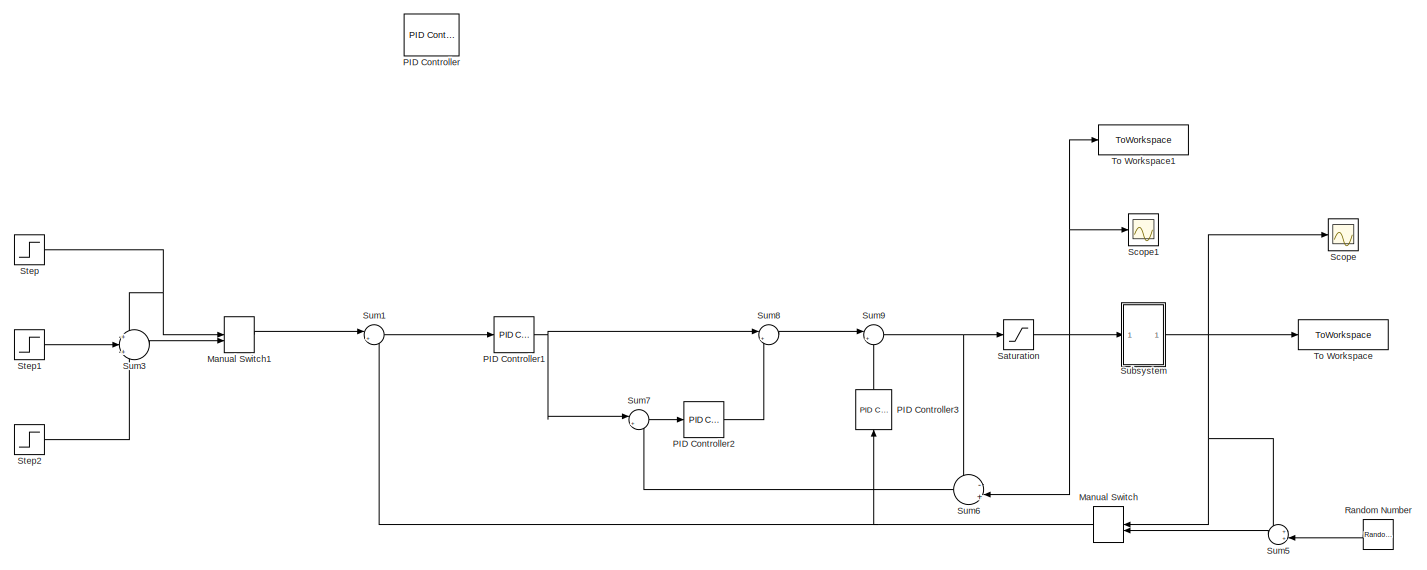
[diagram: root canvas - part 1/2, full width, top band]
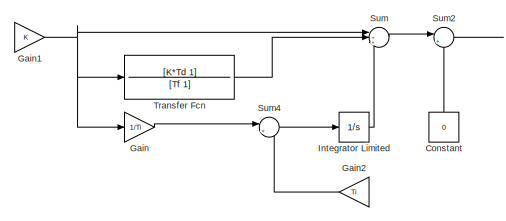
[diagram: root canvas - part 2/2, bottom center region]
MODEL slx_afa5c2158706
KIND model
CONFIG AbsTol = auto
CONFIG EnableMultiTasking = off
CONFIG FixedStep = 0.1
CONFIG MaxStep = auto
CONFIG MinStep = auto
CONFIG RelTol = 1e-3
CONFIG SampleTimeConstraint = Unconstrained
CONFIG Solver = ode4
CONFIG SolverName = ode4
CONFIG StartTime = 0.0
CONFIG StopTime = 100000.0
BLOCK [Constant] Constant
  Commented = on
  Value = 0
BLOCK [Gain] Gain
  Commented = on
  Gain = 1/Ti
BLOCK [Gain] Gain1
  Commented = on
  Gain = K
BLOCK [Gain] Gain2
  Commented = on
  Gain = Ti
BLOCK [Integrator] Integrator Limited
  Commented = on
  LimitOutput = on
  LowerSaturationLimit = 0
  Ports = [1, 1]
  UpperSaturationLimit = 10*Fa
BLOCK [ManualSwitch] Manual Switch
  CurrentSetting = 0
BLOCK [ManualSwitch] Manual Switch1
  CurrentSetting = 0
BLOCK [Reference] PID Controller  REF=simulink/Continuous/PID Controller
  Commented = on
  Ports = [1, 1]
  SourceBlock = simulink/Continuous/PID Controller
  SourceProductBaseCode = SL
  SourceType = PID 1dof
BLOCK [Reference] PID Controller1  REF=simulink/Continuous/PID Controller
  Ports = [1, 1]
  SourceBlock = simulink/Continuous/PID Controller
  SourceProductBaseCode = SL
  SourceType = PID 1dof
BLOCK [Reference] PID Controller2  REF=simulink/Continuous/PID Controller
  Ports = [1, 1]
  SourceBlock = simulink/Continuous/PID Controller
  SourceProductBaseCode = SL
  SourceType = PID 1dof
BLOCK [Reference] PID Controller3  REF=simulink/Continuous/PID Controller
  Ports = [1, 1]
  SourceBlock = simulink/Continuous/PID Controller
  SourceProductBaseCode = SL
  SourceType = PID 1dof
BLOCK [RandomNumber] Random Number
  SampleTime = 0.1
  Variance = 0.01225
BLOCK [Saturate] Saturation
  LowerLimit = 0
  UpperLimit = 10*Fa
BLOCK [Scope] Scope
  Floating = off
  NumInputPorts = 1
  Ports = [1]
  ScopeSpecificationString = Simulink.scopes.TimeScopeBlockCfg('CurrentConfiguration', extmgr.ConfigurationSet(extmgr.Configuration('Core','General UI',true),extmgr.Configuration('Core','Source UI',true),extmgr.Configuration('Sources','WiredSimulink',true),extmgr.Configuration('Visuals','Time Domain',true,'SerializedDisplays',{struct('MinYLimReal','6.02325','MaxYLimReal','7.77936','YLabelReal','','MinYLimMag','6.02325','MaxYL...<+1404ch>
BLOCK [Scope] Scope1
  Floating = off
  NumInputPorts = 1
  Ports = [1]
  ScopeSpecificationString = Simulink.scopes.TimeScopeBlockCfg('CurrentConfiguration', extmgr.ConfigurationSet(extmgr.Configuration('Core','General UI',true),extmgr.Configuration('Core','Source UI',true),extmgr.Configuration('Sources','WiredSimulink',true,'DataLoggingVariableName','ScopeData1'),extmgr.Configuration('Visuals','Time Domain',true,'SerializedDisplays',{struct('MinYLimReal','-0.02083','MaxYLimReal','0.1875','YLabe...<+1365ch>
BLOCK [Step] Step
  After = 7
  SampleTime = 0
  Time = 0.1
BLOCK [Step] Step1
  After = -0.8
  SampleTime = 0
  Time = 10000
BLOCK [Step] Step2
  After = 1.3
  SampleTime = 0
  Time = 50000
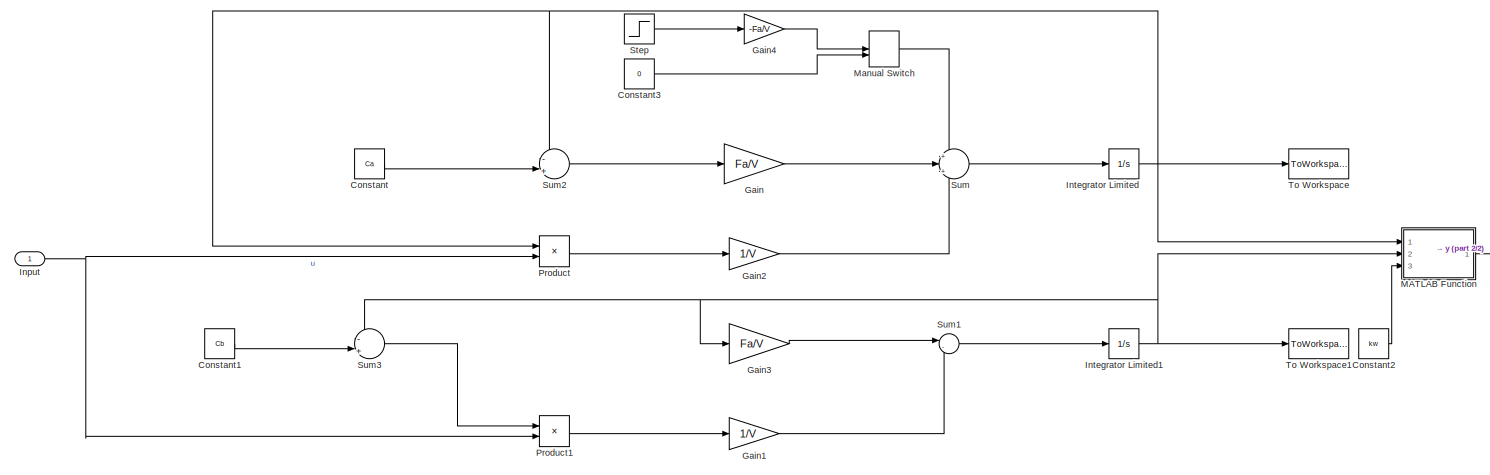
[diagram: Subsystem - part 1/2, most of the canvas]
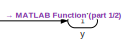
[diagram: Subsystem - part 2/2, middle right region]
BLOCK [SubSystem] Subsystem
  Ports = [1, 1]
  RequestExecContextInheritance = off
BLOCK [Constant] Subsystem/Constant
  Value = Ca
BLOCK [Constant] Subsystem/Constant1
  Value = Cb
BLOCK [Constant] Subsystem/Constant2
  Value = kw
BLOCK [Constant] Subsystem/Constant3
  Value = 0
BLOCK [Gain] Subsystem/Gain
  Gain = Fa/V
BLOCK [Gain] Subsystem/Gain1
  Gain = 1/V
BLOCK [Gain] Subsystem/Gain2
  Gain = 1/V
BLOCK [Gain] Subsystem/Gain3
  Gain = Fa/V
BLOCK [Gain] Subsystem/Gain4
  Gain = -Fa/V
BLOCK [Inport] Subsystem/Input
  IconDisplay = Signal name
BLOCK [Integrator] Subsystem/Integrator Limited
  LimitOutput = on
  LowerSaturationLimit = 0
  Ports = [1, 1]
  UpperSaturationLimit = Ca
BLOCK [Integrator] Subsystem/Integrator Limited1
  LimitOutput = on
  LowerSaturationLimit = 0
  Ports = [1, 1]
  UpperSaturationLimit = Cb
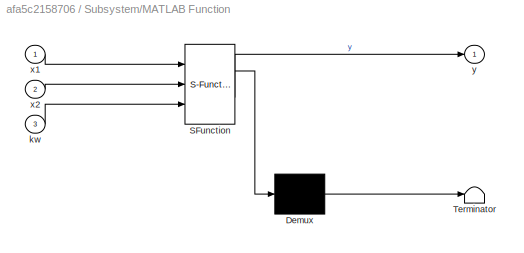
BLOCK [SubSystem] Subsystem/MATLAB Function
  ErrorFcn = Stateflow.Translate.translate
  PermitHierarchicalResolution = ExplicitOnly
  Ports = [3, 1]
  RequestExecContextInheritance = off
  SFBlockType = MATLAB Function
  TreatAsAtomicUnit = on
BLOCK [Demux] Subsystem/MATLAB Function/ Demux 
  Outputs = 1
  Ports = [1, 1]
BLOCK [S-Function] Subsystem/MATLAB Function/ SFunction 
  EnableBusSupport = on
  FunctionName = sf_sfun
  PortCounts = [3 2]
  Ports = [3, 2]
  SFcnIsStateOwnerBlock = off
  SFunctionDeploymentMode = off
  Tag = Stateflow S-Function konvencionalni_PID 2
BLOCK [Terminator] Subsystem/MATLAB Function/ Terminator 
BLOCK [Inport] Subsystem/MATLAB Function/kw
  Port = 3
BLOCK [Inport] Subsystem/MATLAB Function/x1
BLOCK [Inport] Subsystem/MATLAB Function/x2
  Port = 2
BLOCK [Outport] Subsystem/MATLAB Function/y
BLOCK [ManualSwitch] Subsystem/Manual Switch
BLOCK [Product] Subsystem/Product
  Ports = [2, 1]
BLOCK [Product] Subsystem/Product1
  Ports = [2, 1]
BLOCK [Step] Subsystem/Step
  After = Ca
  SampleTime = 0
  Time = 70000
BLOCK [Sum] Subsystem/Sum
  Inputs = +|+|-
  Ports = [3, 1]
BLOCK [Sum] Subsystem/Sum1
  Inputs = |-+
  Ports = [2, 1]
BLOCK [Sum] Subsystem/Sum2
  Inputs = -|+||
  Ports = [2, 1]
BLOCK [Sum] Subsystem/Sum3
  Inputs = -|+||
  Ports = [2, 1]
BLOCK [ToWorkspace] Subsystem/To Workspace
  FixptAsFi = on
  MaxDataPoints = inf
  Ports = [1]
  SampleTime = -1
  VariableName = x1
BLOCK [ToWorkspace] Subsystem/To Workspace1
  FixptAsFi = on
  MaxDataPoints = inf
  Ports = [1]
  SampleTime = -1
  VariableName = x2
BLOCK [Outport] Subsystem/y
BLOCK [Sum] Sum
  Commented = on
  Inputs = |+++
  Ports = [3, 1]
BLOCK [Sum] Sum1
  Inputs = |+-
  Ports = [2, 1]
BLOCK [Sum] Sum2
  Commented = on
  Inputs = |+-
  Ports = [2, 1]
BLOCK [Sum] Sum3
  Inputs = +|+|+
  Ports = [3, 1]
BLOCK [Sum] Sum4
  Commented = on
  Inputs = |++
  Ports = [2, 1]
BLOCK [Sum] Sum5
  Inputs = ++|
  Ports = [2, 1]
BLOCK [Sum] Sum6
  Inputs = -|+||
  Ports = [2, 1]
BLOCK [Sum] Sum7
  Inputs = |++
  Ports = [2, 1]
BLOCK [Sum] Sum8
  Inputs = |++
  Ports = [2, 1]
BLOCK [Sum] Sum9
  Inputs = |++
  Ports = [2, 1]
BLOCK [ToWorkspace] To Workspace
  FixptAsFi = on
  MaxDataPoints = inf
  Ports = [1]
  SampleTime = -1
  VariableName = y
BLOCK [ToWorkspace] To Workspace1
  FixptAsFi = on
  MaxDataPoints = inf
  Ports = [1]
  SampleTime = -1
  VariableName = u
BLOCK [TransferFcn] Transfer Fcn
  Commented = on
  Denominator = [Tf 1]
  Numerator = [K*Td 1]
LINE Constant:1 -> Sum2:2
NET Gain1:1 -> Gain:1, Sum:1, Transfer Fcn:1
LINE Gain2:1 -> Sum4:2
LINE Gain:1 -> Sum4:1
LINE Integrator Limited:1 -> Sum:3
LINE Manual Switch1:1 -> Sum1:1
NET Manual Switch:1 -> PID Controller3:1, Sum1:2
NET PID Controller1:1 -> Sum7:1, Sum8:1
LINE PID Controller2:1 -> Sum8:2
LINE PID Controller3:1 -> Sum9:2
LINE Random Number:1 -> Sum5:2
NET Saturation:1 -> Scope1:1, Subsystem:1, Sum6:2, To Workspace1:1
LINE Step1:1 -> Sum3:2
LINE Step2:1 -> Sum3:3
NET Step:1 -> Manual Switch1:1, Sum3:1
LINE Subsystem/Constant1:1 -> Subsystem/Sum3:2
LINE Subsystem/Constant2:1 -> Subsystem/MATLAB Function:3
LINE Subsystem/Constant3:1 -> Subsystem/Manual Switch:2
LINE Subsystem/Constant:1 -> Subsystem/Sum2:2
LINE Subsystem/Gain1:1 -> Subsystem/Sum1:2
LINE Subsystem/Gain2:1 -> Subsystem/Sum:3
LINE Subsystem/Gain3:1 -> Subsystem/Sum1:1
LINE Subsystem/Gain4:1 -> Subsystem/Manual Switch:1
LINE Subsystem/Gain:1 -> Subsystem/Sum:2
NET Subsystem/Input:1 -> Subsystem/Product1:2, Subsystem/Product:2
NET Subsystem/Integrator Limited1:1 -> Subsystem/Gain3:1, Subsystem/MATLAB Function:2, Subsystem/Sum3:1, Subsystem/To Workspace1:1
NET Subsystem/Integrator Limited:1 -> Subsystem/MATLAB Function:1, Subsystem/Product:1, Subsystem/Sum2:1, Subsystem/To Workspace:1
LINE Subsystem/MATLAB Function:1 -> Subsystem/y:1
LINE Subsystem/Manual Switch:1 -> Subsystem/Sum:1
LINE Subsystem/Product1:1 -> Subsystem/Gain1:1
LINE Subsystem/Product:1 -> Subsystem/Gain2:1
LINE Subsystem/Step:1 -> Subsystem/Gain4:1
LINE Subsystem/Sum1:1 -> Subsystem/Integrator Limited1:1
LINE Subsystem/Sum2:1 -> Subsystem/Gain:1
LINE Subsystem/Sum3:1 -> Subsystem/Product1:1
LINE Subsystem/Sum:1 -> Subsystem/Integrator Limited:1
NET Subsystem:1 -> Manual Switch:1, Scope:1, Sum5:1, To Workspace:1
LINE Sum1:1 -> PID Controller1:1
LINE Sum3:1 -> Manual Switch1:2
LINE Sum4:1 -> Integrator Limited:1
LINE Sum5:1 -> Manual Switch:2
LINE Sum6:1 -> Sum7:2
LINE Sum7:1 -> PID Controller2:1
LINE Sum8:1 -> Sum9:1
NET Sum9:1 -> Saturation:1, Sum6:1
LINE Sum:1 -> Sum2:1
LINE Transfer Fcn:1 -> Sum:2
note: NET lines group one-source signal fan-out (src -> all destinations, sorted); 1:1 wires keep LINE
CHART Subsystem/MATLAB Function states=1 transitions=1
  STATE_LABEL 'eML_blk_kernel()'
  STATE_LABEL 'SCRIPT:\nfunction y = fcn(x1, x2, kw)\n\ny = -log10(sqrt((x2-x1)^2 / 4 + kw) - (x2 - x1) / 2);\n'
